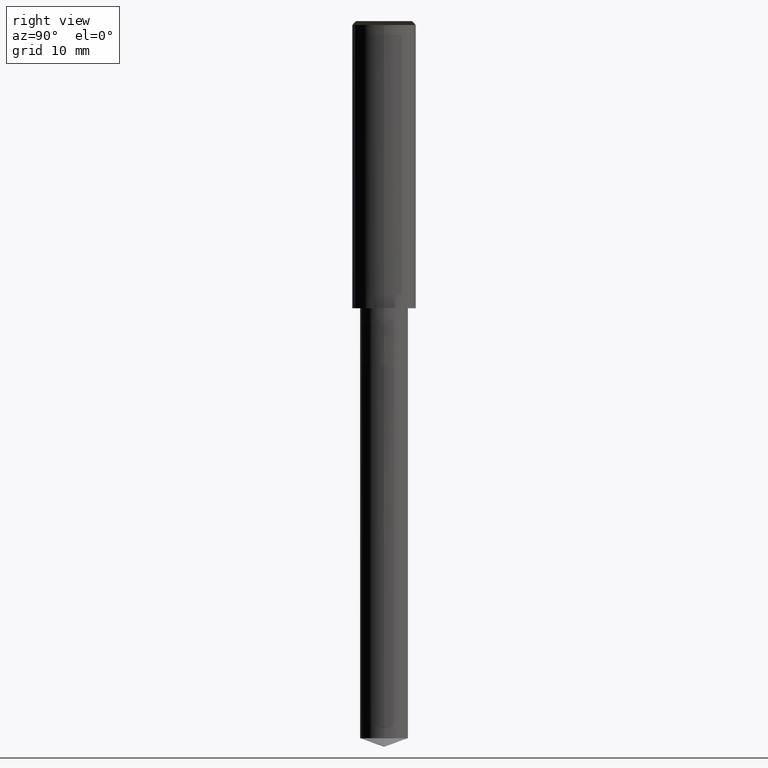
[diagram: clean part render]
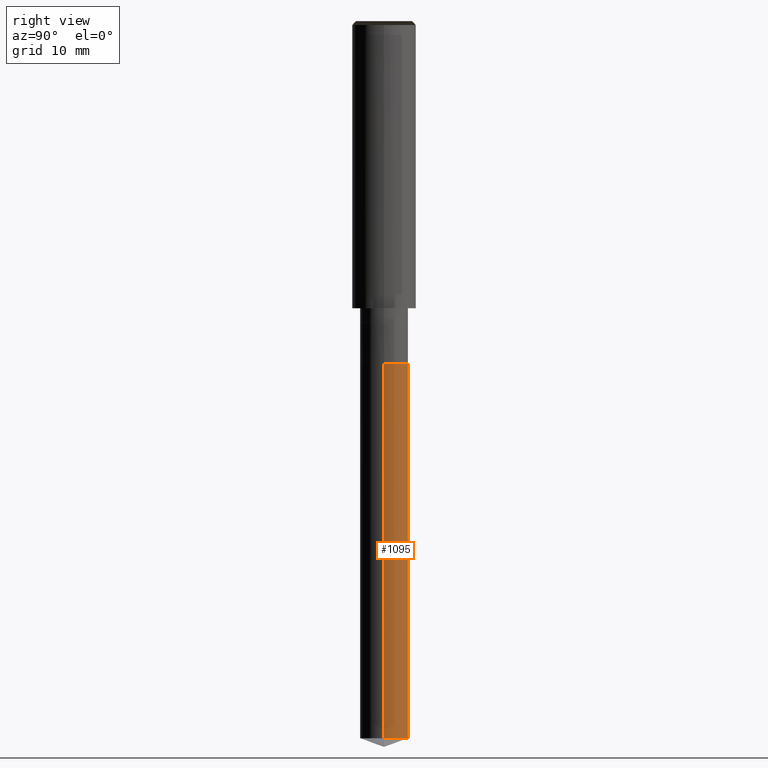
[diagram: same view with one face highlighted and labeled with its STEP entity id]
A machine part, right view. The second image highlights one B-rep face of the part: STEP entity #1095.
In plain terms, the highlighted face is a freeform B-spline surface patch.
Its self-contained STEP definition (entity closure, byte-faithful):
#997=CARTESIAN_POINT('',(3.0,0.0,-53.908089297201));
#998=CARTESIAN_POINT('',(3.0,3.0,-53.908089297201));
#999=CARTESIAN_POINT('',(0.0,3.0,-53.908089297201));
#1000=CARTESIAN_POINT('',(-3.0,3.0,-53.908089297201));
#1001=CARTESIAN_POINT('',(-3.0,0.0,-53.908089297201));
#1002=CARTESIAN_POINT('',(3.0,0.0,-7.0));
#1003=CARTESIAN_POINT('',(3.0,3.0,-7.0));
#1004=CARTESIAN_POINT('',(0.0,3.0,-7.0));
#1005=CARTESIAN_POINT('',(-3.0,3.0,-7.0));
#1006=CARTESIAN_POINT('',(-3.0,0.0,-7.0));
#1076=(
BOUNDED_SURFACE()
B_SPLINE_SURFACE(1,2,(
(#997,#998,#999,#1000,#1001),
(#1002,#1003,#1004,#1005,#1006)
), .UNSPECIFIED.,.F.,.F.,.F.)
B_SPLINE_SURFACE_WITH_KNOTS((2,2),(3,2,3),(
0.0,1.0),(
0.0,0.5,1.0), .UNSPECIFIED.)
GEOMETRIC_REPRESENTATION_ITEM()
RATIONAL_B_SPLINE_SURFACE(((1.0,0.707106781187,1.0,0.707106781187,1.0),
(1.0,0.707106781187,1.0,0.707106781187,1.0)
))
REPRESENTATION_ITEM('')
SURFACE()
);
#1077=(
BOUNDED_CURVE()
B_SPLINE_CURVE(2,(#1001,#1000,#999,#998,#997),.UNSPECIFIED.,.F.,.F.)
B_SPLINE_CURVE_WITH_KNOTS((3,2,3),
(0.0,0.5,1.0),.UNSPECIFIED.)
CURVE()
GEOMETRIC_REPRESENTATION_ITEM()
RATIONAL_B_SPLINE_CURVE((1.0,0.707106781187,1.0,0.707106781187,1.0))
REPRESENTATION_ITEM('')
);
#1078=(
BOUNDED_CURVE()
B_SPLINE_CURVE(1,(#997,#1002),.UNSPECIFIED.,.F.,.F.)
B_SPLINE_CURVE_WITH_KNOTS((2,2),
(0.0,1.0),.UNSPECIFIED.)
CURVE()
GEOMETRIC_REPRESENTATION_ITEM()
RATIONAL_B_SPLINE_CURVE((1.0,1.0))
REPRESENTATION_ITEM('')
);
#1079=(
BOUNDED_CURVE()
B_SPLINE_CURVE(2,(#1002,#1003,#1004,#1005,#1006),.UNSPECIFIED.,.F.,.F.)
B_SPLINE_CURVE_WITH_KNOTS((3,2,3),
(0.0,0.5,1.0),.UNSPECIFIED.)
CURVE()
GEOMETRIC_REPRESENTATION_ITEM()
RATIONAL_B_SPLINE_CURVE((1.0,0.707106781187,1.0,0.707106781187,1.0))
REPRESENTATION_ITEM('')
);
#1080=(
BOUNDED_CURVE()
B_SPLINE_CURVE(1,(#1006,#1001),.UNSPECIFIED.,.F.,.F.)
B_SPLINE_CURVE_WITH_KNOTS((2,2),
(0.0,1.0),.UNSPECIFIED.)
CURVE()
GEOMETRIC_REPRESENTATION_ITEM()
RATIONAL_B_SPLINE_CURVE((1.0,1.0))
REPRESENTATION_ITEM('')
);
#1081=VERTEX_POINT('',#997);
#1082=VERTEX_POINT('',#1001);
#1083=VERTEX_POINT('',#1002);
#1084=VERTEX_POINT('',#1006);
#1085=EDGE_CURVE('',#1082,#1081,#1077,.T.);
#1086=EDGE_CURVE('',#1081,#1083,#1078,.T.);
#1087=EDGE_CURVE('',#1083,#1084,#1079,.T.);
#1088=EDGE_CURVE('',#1084,#1082,#1080,.T.);
#1089=ORIENTED_EDGE('',*,*,#1085,.T.);
#1090=ORIENTED_EDGE('',*,*,#1086,.T.);
#1091=ORIENTED_EDGE('',*,*,#1087,.T.);
#1092=ORIENTED_EDGE('',*,*,#1088,.T.);
#1093=EDGE_LOOP('',(#1089,#1090,#1091,#1092));
#1094=FACE_OUTER_BOUND('',#1093,.T.);
#1095=ADVANCED_FACE('',(#1094),#1076,.T.);